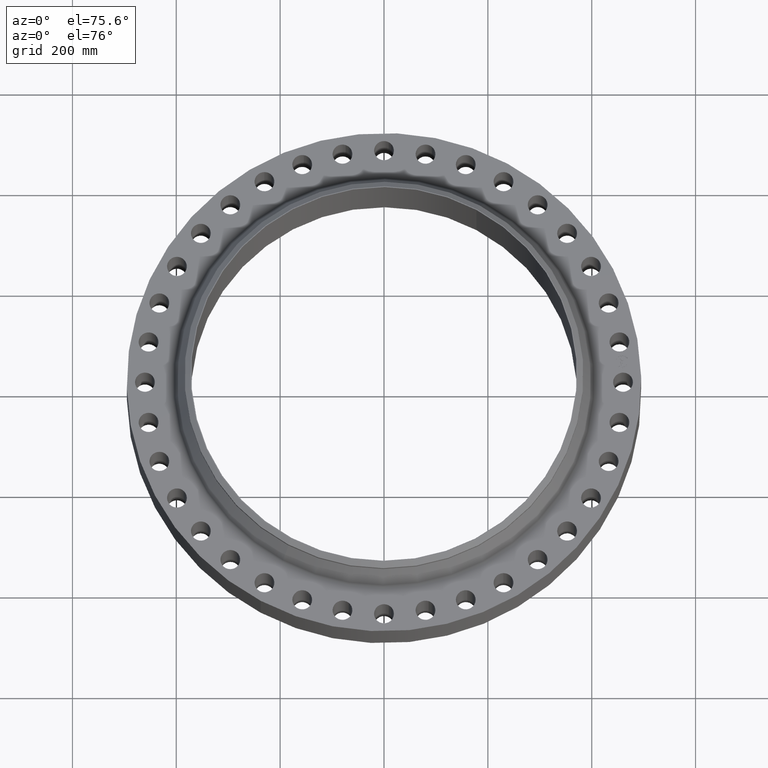
[diagram: clean part render]
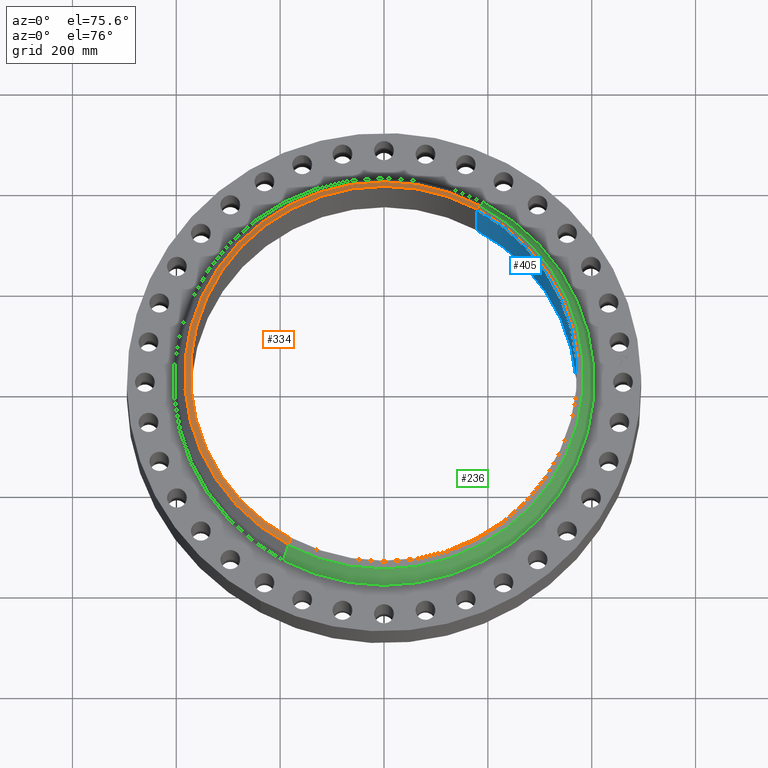
[diagram: same view with three faces highlighted in distinct colors, each labeled with its STEP entity id]
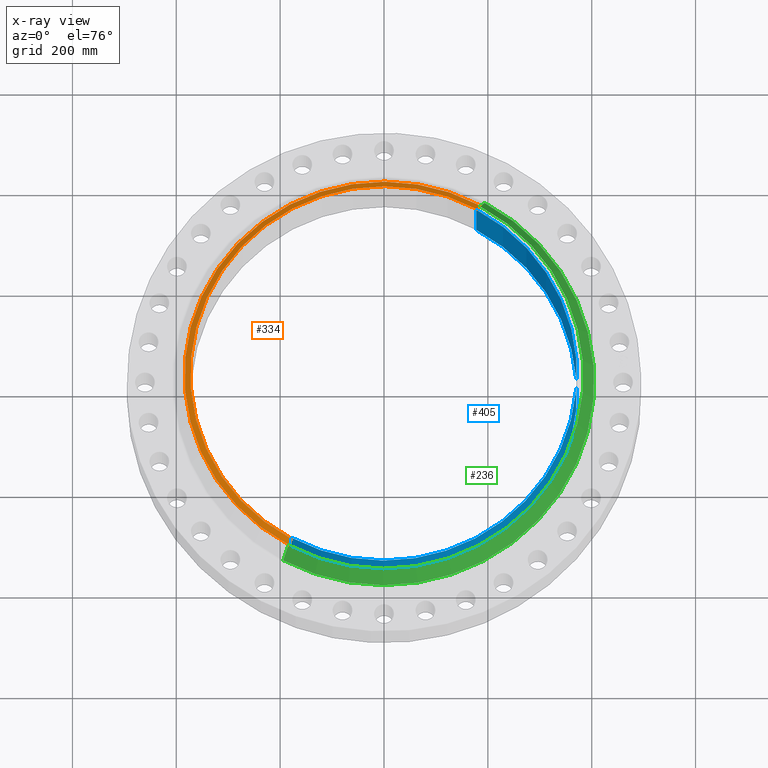
[diagram: x-ray of the same camera — body ghosted, the three highlighted faces saturated]
A machine part, auxiliary view with three faces highlighted in distinct colors.
The next image is the same camera in x-ray (body ghosted, the three faces saturated) — at least one of them is partly hidden behind the body in this view.
Their STEP definitions:

[orange] entity #334 — the highlighted conical surface has half-angle 52.5 deg.
#282=AXIS2_PLACEMENT_3D('Circle Axis2P3D',#280,#281,$) ;
#295=AXIS2_PLACEMENT_3D('Cone Axis2P3D',#292,#293,#294) ;
#325=AXIS2_PLACEMENT_3D('Circle Axis2P3D',#323,#324,$) ;
#258=CARTESIAN_POINT('Vertex',(-7.25131127142,-13.2734362486,5.82429444278)) ;
#265=CARTESIAN_POINT('Vertex',(7.25131127142,13.2734362486,5.82429444278)) ;
#280=CARTESIAN_POINT('Axis2P3D Location',(0.,0.,5.82429444278)) ;
#292=CARTESIAN_POINT('Axis2P3D Location',(0.,0.,6.16000000002)) ;
#297=CARTESIAN_POINT('Line Origine',(7.14643693485,13.0814650632,5.9921472214)) ;
#301=CARTESIAN_POINT('Vertex',(7.04156259828,12.8894938778,6.16000000002)) ;
#308=CARTESIAN_POINT('Vertex',(-7.04156259828,-12.8894938778,6.16000000002)) ;
#311=CARTESIAN_POINT('Line Origine',(-7.14643693485,-13.0814650632,5.9921472214)) ;
#323=CARTESIAN_POINT('Axis2P3D Location',(0.,0.,6.16000000002)) ;
#281=DIRECTION('Axis2P3D Direction',(0.,0.,-0.0393700787402)) ;
#293=DIRECTION('Axis2P3D Direction',(-0.,-0.,-0.0393700787402)) ;
#294=DIRECTION('Axis2P3D XDirection',(-0.0188750212049,-0.0345504945626,0.)) ;
#298=DIRECTION('Vector Direction',(0.014974561121,0.02741075027,-0.023966985394)) ;
#312=DIRECTION('Vector Direction',(-0.014974561121,-0.02741075027,-0.023966985394)) ;
#324=DIRECTION('Axis2P3D Direction',(0.,-0.,-0.0393700787402)) ;
#299=VECTOR('Line Direction',#298,0.0393700787402) ;
#313=VECTOR('Line Direction',#312,0.0393700787402) ;
#329=ORIENTED_EDGE('',*,*,#315,.F.) ;
#330=ORIENTED_EDGE('',*,*,#327,.T.) ;
#331=ORIENTED_EDGE('',*,*,#303,.T.) ;
#332=ORIENTED_EDGE('',*,*,#284,.F.) ;
#334=ADVANCED_FACE('PartBody',(#333),#296,.T.) ;
#283=CIRCLE('generated circle',#282,15.1250000001) ;
#326=CIRCLE('generated circle',#325,14.6875000001) ;
#296=CONICAL_SURFACE('Cone',#295,14.6875000001,0.916297857297) ;
#284=EDGE_CURVE('',#259,#266,#283,.T.) ;
#303=EDGE_CURVE('',#302,#266,#300,.T.) ;
#315=EDGE_CURVE('',#309,#259,#314,.T.) ;
#327=EDGE_CURVE('',#309,#302,#326,.T.) ;
#328=EDGE_LOOP('',(#329,#330,#331,#332)) ;
#333=FACE_OUTER_BOUND('',#328,.T.) ;
#300=LINE('Line',#297,#299) ;
#314=LINE('Line',#311,#313) ;
#259=VERTEX_POINT('',#258) ;
#266=VERTEX_POINT('',#265) ;
#302=VERTEX_POINT('',#301) ;
#309=VERTEX_POINT('',#308) ;

[blue] entity #405 — the highlighted cylindrical surface (partial cylindrical patch) has radius 371.475 mm, axis along (0, 0, -1).
#355=AXIS2_PLACEMENT_3D('Circle Axis2P3D',#353,#354,$) ;
#366=AXIS2_PLACEMENT_3D('Cylinder Axis2P3D',#363,#364,#365) ;
#396=AXIS2_PLACEMENT_3D('Circle Axis2P3D',#394,#395,$) ;
#348=CARTESIAN_POINT('Vertex',(-7.01159850211,-12.8346449677,6.16000000002)) ;
#350=CARTESIAN_POINT('Vertex',(7.01159850211,12.8346449677,6.16000000002)) ;
#353=CARTESIAN_POINT('Axis2P3D Location',(4.47585975282E-015,0.,6.16000000002)) ;
#363=CARTESIAN_POINT('Axis2P3D Location',(0.,0.,3.13000000001)) ;
#368=CARTESIAN_POINT('Line Origine',(-7.01159850211,-12.8346449677,3.08000000001)) ;
#372=CARTESIAN_POINT('Vertex',(-7.01159850211,-12.8346449677,-2.23792987641E-014)) ;
#379=CARTESIAN_POINT('Vertex',(7.01159850211,12.8346449677,-2.23792987641E-014)) ;
#382=CARTESIAN_POINT('Line Origine',(7.01159850211,12.8346449677,3.08000000001)) ;
#394=CARTESIAN_POINT('Axis2P3D Location',(0.,0.,-2.23792987641E-014)) ;
#354=DIRECTION('Axis2P3D Direction',(0.,-0.,-0.0393700787402)) ;
#364=DIRECTION('Axis2P3D Direction',(0.,0.,-0.0393700787402)) ;
#365=DIRECTION('Axis2P3D XDirection',(0.0188750212049,0.0345504945626,0.)) ;
#369=DIRECTION('Vector Direction',(0.,0.,-0.0393700787402)) ;
#383=DIRECTION('Vector Direction',(0.,0.,-0.0393700787402)) ;
#395=DIRECTION('Axis2P3D Direction',(0.,0.,-0.0393700787402)) ;
#370=VECTOR('Line Direction',#369,0.0393700787402) ;
#384=VECTOR('Line Direction',#383,0.0393700787402) ;
#400=ORIENTED_EDGE('',*,*,#386,.T.) ;
#401=ORIENTED_EDGE('',*,*,#398,.T.) ;
#402=ORIENTED_EDGE('',*,*,#374,.F.) ;
#403=ORIENTED_EDGE('',*,*,#357,.F.) ;
#405=ADVANCED_FACE('PartBody',(#404),#367,.F.) ;
#356=CIRCLE('generated circle',#355,14.6250000001) ;
#397=CIRCLE('generated circle',#396,14.6250000001) ;
#367=CYLINDRICAL_SURFACE('generated cylinder',#366,14.6250000001) ;
#357=EDGE_CURVE('',#351,#349,#356,.T.) ;
#374=EDGE_CURVE('',#349,#373,#371,.T.) ;
#386=EDGE_CURVE('',#351,#380,#385,.T.) ;
#398=EDGE_CURVE('',#380,#373,#397,.T.) ;
#399=EDGE_LOOP('',(#400,#401,#402,#403)) ;
#404=FACE_OUTER_BOUND('',#399,.T.) ;
#371=LINE('Line',#368,#370) ;
#385=LINE('Line',#382,#384) ;
#349=VERTEX_POINT('',#348) ;
#351=VERTEX_POINT('',#350) ;
#373=VERTEX_POINT('',#372) ;
#380=VERTEX_POINT('',#379) ;

[green] entity #236 — the highlighted conical surface has half-angle 24.078 deg.
#172=AXIS2_PLACEMENT_3D('Circle Axis2P3D',#170,#171,$) ;
#209=AXIS2_PLACEMENT_3D('Cone Axis2P3D',#206,#207,#208) ;
#220=AXIS2_PLACEMENT_3D('Circle Axis2P3D',#218,#219,$) ;
#167=CARTESIAN_POINT('Vertex',(7.63910033167,13.9832793621,3.77800372415)) ;
#170=CARTESIAN_POINT('Axis2P3D Location',(0.,0.,3.77800372415)) ;
#174=CARTESIAN_POINT('Vertex',(-7.63910033167,-13.9832793621,3.77800372415)) ;
#206=CARTESIAN_POINT('Axis2P3D Location',(0.,0.,5.58807397034)) ;
#211=CARTESIAN_POINT('Line Origine',(7.44520580154,13.6283578053,4.68303884724)) ;
#215=CARTESIAN_POINT('Vertex',(7.25131127142,13.2734362486,5.58807397034)) ;
#218=CARTESIAN_POINT('Axis2P3D Location',(0.,0.,5.58807397034)) ;
#222=CARTESIAN_POINT('Vertex',(-7.25131127142,-13.2734362486,5.58807397034)) ;
#225=CARTESIAN_POINT('Line Origine',(-7.44520580154,-13.6283578053,4.68303884724)) ;
#171=DIRECTION('Axis2P3D Direction',(0.,0.,-0.0393700787402)) ;
#207=DIRECTION('Axis2P3D Direction',(0.,0.,-0.0393700787402)) ;
#208=DIRECTION('Axis2P3D XDirection',(-0.0188750212049,-0.0345504945626,0.)) ;
#212=DIRECTION('Vector Direction',(0.00770072747941,0.0140960870993,-0.0359444324588)) ;
#219=DIRECTION('Axis2P3D Direction',(0.,0.,-0.0393700787402)) ;
#226=DIRECTION('Vector Direction',(-0.00770072747941,-0.0140960870993,-0.0359444324588)) ;
#213=VECTOR('Line Direction',#212,0.0393700787402) ;
#227=VECTOR('Line Direction',#226,0.0393700787402) ;
#231=ORIENTED_EDGE('',*,*,#176,.F.) ;
#232=ORIENTED_EDGE('',*,*,#217,.T.) ;
#233=ORIENTED_EDGE('',*,*,#224,.T.) ;
#234=ORIENTED_EDGE('',*,*,#229,.F.) ;
#236=ADVANCED_FACE('PartBody',(#235),#210,.T.) ;
#173=CIRCLE('generated circle',#172,15.9338619171) ;
#221=CIRCLE('generated circle',#220,15.1250000001) ;
#210=CONICAL_SURFACE('Cone',#209,15.1250000001,0.420246046965) ;
#176=EDGE_CURVE('',#168,#175,#173,.T.) ;
#217=EDGE_CURVE('',#168,#216,#214,.F.) ;
#224=EDGE_CURVE('',#216,#223,#221,.T.) ;
#229=EDGE_CURVE('',#175,#223,#228,.F.) ;
#230=EDGE_LOOP('',(#231,#232,#233,#234)) ;
#235=FACE_OUTER_BOUND('',#230,.T.) ;
#214=LINE('Line',#211,#213) ;
#228=LINE('Line',#225,#227) ;
#168=VERTEX_POINT('',#167) ;
#175=VERTEX_POINT('',#174) ;
#216=VERTEX_POINT('',#215) ;
#223=VERTEX_POINT('',#222) ;